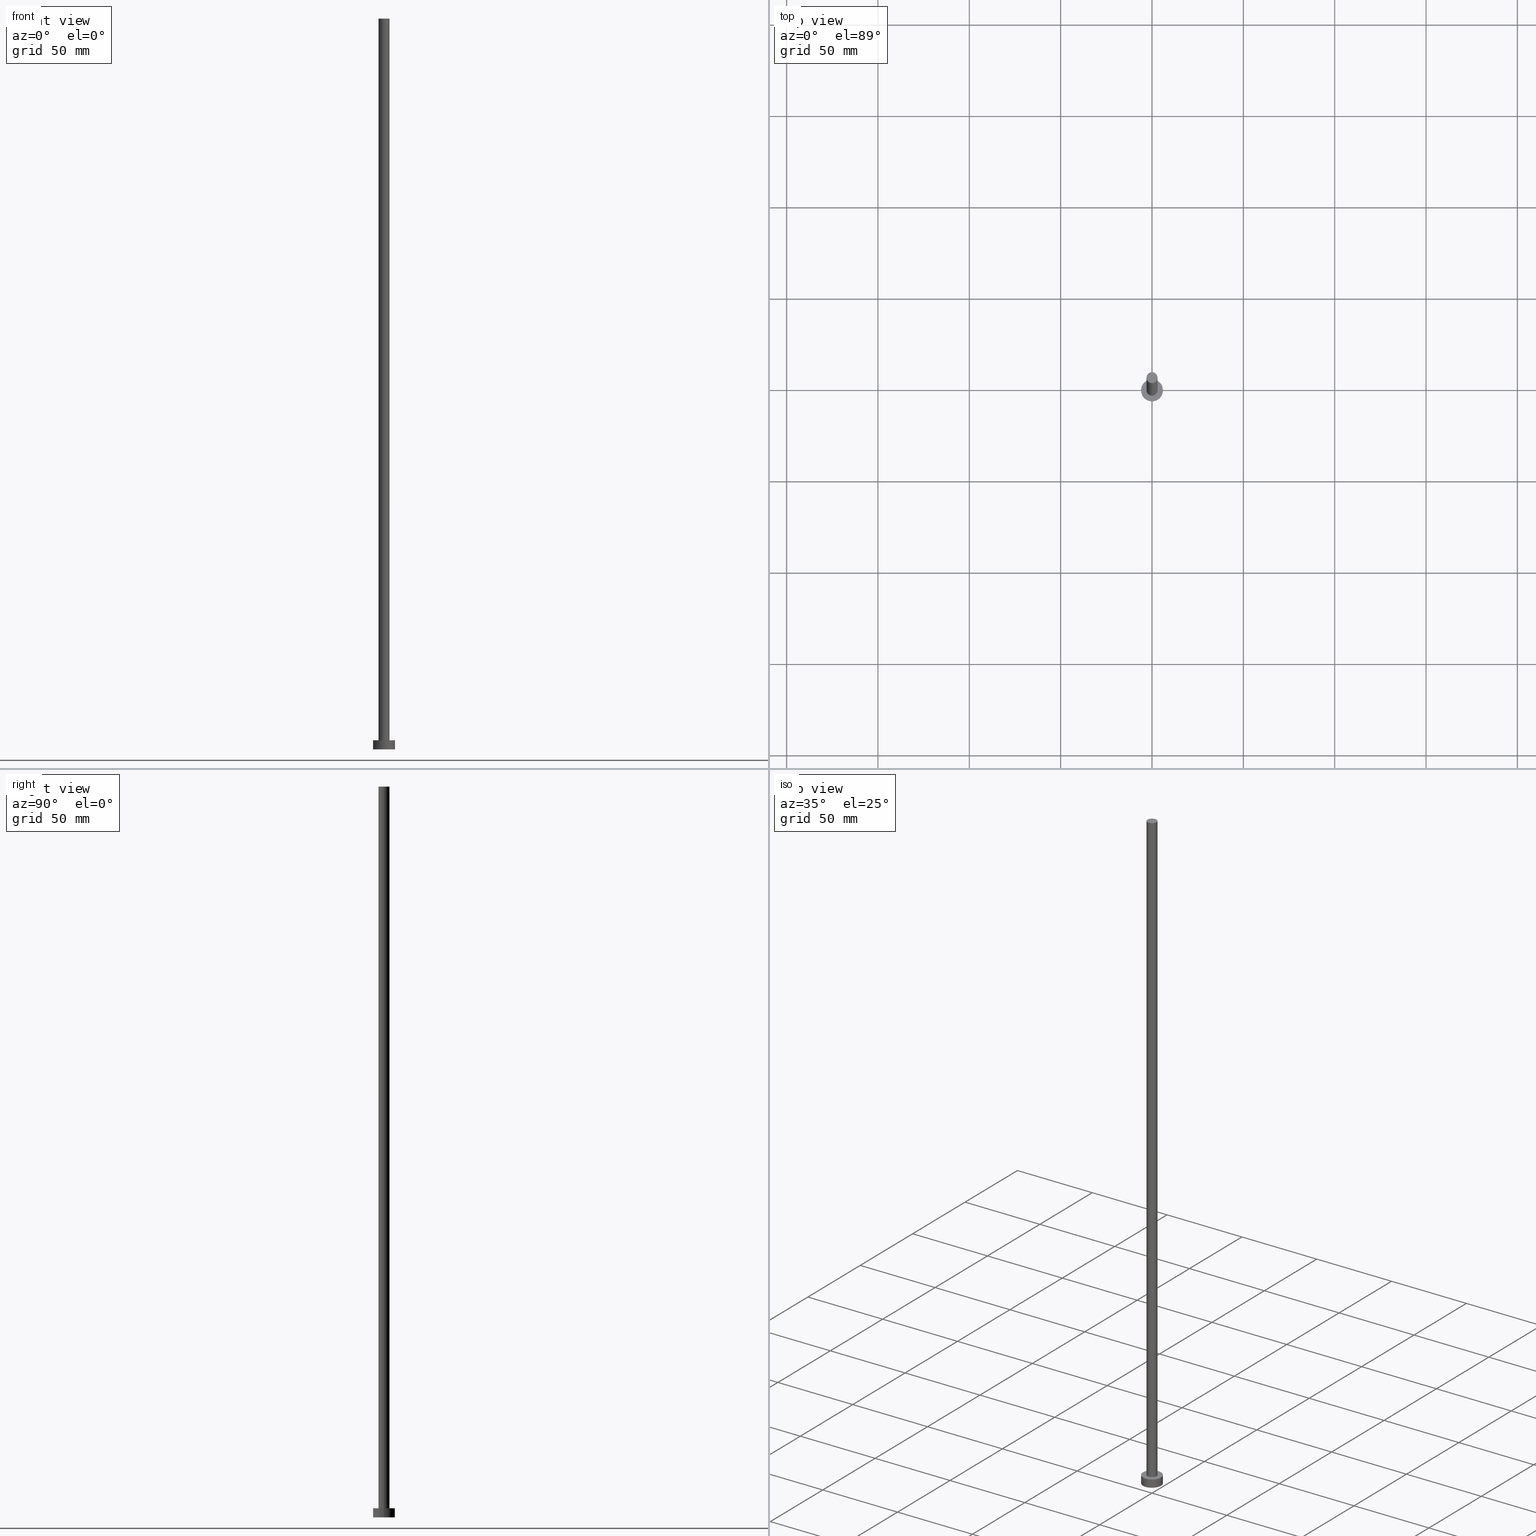
[diagram: canonical four-view strip — front | top / right | iso, engineering-drawing reading convention]
A machine part, canonical four-view strip (front | top / right | iso — engineering-drawing reading convention). The complete STEP part file that produces these views, byte-faithful:
ISO-10303-21;
HEADER;
FILE_DESCRIPTION (( 'STEP AP203' ),
    '1' );
FILE_NAME ('3a24.STEP',
    '2023-02-13T14:07:04',
    ( '' ),
    ( '' ),
    'SwSTEP 2.0',
    'SolidWorks 2019',
    '' );
FILE_SCHEMA (( 'CONFIG_CONTROL_DESIGN' ));
ENDSEC;

DATA;
#1 = VERTEX_POINT ( 'NONE', #68 ) ;
#2 = LOCAL_TIME ( 15, 7, 4.000000000000000000, #13 ) ;
#3 = LINE ( 'NONE', #142, #199 ) ;
#4 = ORIENTED_EDGE ( 'NONE', *, *, #155, .T. ) ;
#5 = APPLICATION_CONTEXT ( 'configuration controlled 3d designs of mechanical parts and assemblies' ) ;
#6 = APPROVAL_PERSON_ORGANIZATION ( #214, #143, #213 ) ;
#7 = DIRECTION ( 'NONE',  ( -1.000000000000000000, 0.000000000000000000, 0.000000000000000000 ) ) ;
#8 = CC_DESIGN_SECURITY_CLASSIFICATION ( #74, ( #82 ) ) ;
#9 = APPLICATION_PROTOCOL_DEFINITION ( 'international standard', 'config_control_design', 1994, #48 ) ;
#10 = PERSON_AND_ORGANIZATION_ROLE ( 'creator' ) ;
#11 = DESIGN_CONTEXT ( 'detailed design', #48, 'design' ) ;
#12 = DATE_TIME_ROLE ( 'creation_date' ) ;
#13 = COORDINATED_UNIVERSAL_TIME_OFFSET ( 1, 0, .AHEAD. ) ;
#14 = ADVANCED_FACE ( 'NONE', ( #224 ), #221, .T. ) ;
#15 = APPROVAL_PERSON_ORGANIZATION ( #170, #118, #132 ) ;
#16 = CARTESIAN_POINT ( 'NONE',  ( -6.000000000000000888, 0.000000000000000000, 0.000000000000000000 ) ) ;
#17 = EDGE_CURVE ( 'NONE', #237, #181, #83, .T. ) ;
#18 = AXIS2_PLACEMENT_3D ( 'NONE', #156, #152, #116 ) ;
#19 = DIRECTION ( 'NONE',  ( -0.000000000000000000, -0.000000000000000000, -1.000000000000000000 ) ) ;
#20 = VERTEX_POINT ( 'NONE', #64 ) ;
#21 = DIRECTION ( 'NONE',  ( -0.000000000000000000, -0.000000000000000000, -1.000000000000000000 ) ) ;
#22 = VECTOR ( 'NONE', #19, 1000.000000000000000 ) ;
#23 = ADVANCED_FACE ( 'NONE', ( #100 ), #178, .T. ) ;
#24 = CARTESIAN_POINT ( 'NONE',  ( 0.000000000000000000, 0.000000000000000000, 400.0000000000000000 ) ) ;
#25 = CARTESIAN_POINT ( 'NONE',  ( 0.000000000000000000, 0.000000000000000000, 5.000000000000000000 ) ) ;
#26 = DIRECTION ( 'NONE',  ( 0.000000000000000000, 0.000000000000000000, 1.000000000000000000 ) ) ;
#27 = FACE_OUTER_BOUND ( 'NONE', #162, .T. ) ;
#28 = ORIENTED_EDGE ( 'NONE', *, *, #17, .T. ) ;
#29 = CARTESIAN_POINT ( 'NONE',  ( -3.000000000000000444, 0.000000000000000000, 400.0000000000000000 ) ) ;
#30 = EDGE_CURVE ( 'NONE', #66, #181, #84, .T. ) ;
#31 = ORIENTED_EDGE ( 'NONE', *, *, #198, .F. ) ;
#32 =( NAMED_UNIT ( * ) PLANE_ANGLE_UNIT ( ) SI_UNIT ( $, .RADIAN. ) );
#33 = DIRECTION ( 'NONE',  ( 0.000000000000000000, 0.000000000000000000, 1.000000000000000000 ) ) ;
#34 = DATE_AND_TIME ( #96, #2 ) ;
#35 = CALENDAR_DATE ( 2023, 13, 2 ) ;
#36 = APPROVAL_ROLE ( '' ) ;
#37 = CC_DESIGN_PERSON_AND_ORGANIZATION_ASSIGNMENT ( #228, #10, ( #82 ) ) ;
#38 = PERSON_AND_ORGANIZATION ( #117, #247 ) ;
#39 = CARTESIAN_POINT ( 'NONE',  ( 0.000000000000000000, 0.000000000000000000, 400.0000000000000000 ) ) ;
#40 = DIRECTION ( 'NONE',  ( 1.000000000000000000, 0.000000000000000000, -0.000000000000000000 ) ) ;
#41 = EDGE_CURVE ( 'NONE', #86, #103, #153, .T. ) ;
#42 = ORIENTED_EDGE ( 'NONE', *, *, #30, .F. ) ;
#43 = DIRECTION ( 'NONE',  ( 1.000000000000000000, 0.000000000000000000, -0.000000000000000000 ) ) ;
#44 = CARTESIAN_POINT ( 'NONE',  ( 0.000000000000000000, 0.000000000000000000, 400.0000000000000000 ) ) ;
#45 = DIRECTION ( 'NONE',  ( 0.000000000000000000, 0.000000000000000000, 1.000000000000000000 ) ) ;
#46 = ADVANCED_FACE ( 'NONE', ( #56 ), #120, .T. ) ;
#47 = ORIENTED_EDGE ( 'NONE', *, *, #216, .F. ) ;
#48 = APPLICATION_CONTEXT ( 'configuration controlled 3d designs of mechanical parts and assemblies' ) ;
#49 = CARTESIAN_POINT ( 'NONE',  ( -3.000000000000000444, 0.000000000000000000, 5.000000000000000000 ) ) ;
#50 = CIRCLE ( 'NONE', #97, 3.000000000000000444 ) ;
#51 = APPROVAL_DATE_TIME ( #230, #118 ) ;
#52 = DATE_AND_TIME ( #35, #60 ) ;
#53 = EDGE_CURVE ( 'NONE', #237, #20, #50, .T. ) ;
#54 = CARTESIAN_POINT ( 'NONE',  ( 0.000000000000000000, 0.000000000000000000, 0.000000000000000000 ) ) ;
#55 = AXIS2_PLACEMENT_3D ( 'NONE', #39, #236, #239 ) ;
#56 = FACE_OUTER_BOUND ( 'NONE', #59, .T. ) ;
#57 = EDGE_CURVE ( 'NONE', #20, #66, #115, .T. ) ;
#58 = UNCERTAINTY_MEASURE_WITH_UNIT (LENGTH_MEASURE( 1.000000000000000082E-05 ), #69, 'distance_accuracy_value', 'NONE');
#59 = EDGE_LOOP ( 'NONE', ( #187, #164, #28, #235 ) ) ;
#60 = LOCAL_TIME ( 15, 7, 4.000000000000000000, #148 ) ;
#61 = ORIENTED_EDGE ( 'NONE', *, *, #212, .T. ) ;
#62 = DIRECTION ( 'NONE',  ( -0.000000000000000000, -0.000000000000000000, -1.000000000000000000 ) ) ;
#63 = EDGE_CURVE ( 'NONE', #1, #206, #79, .T. ) ;
#64 = CARTESIAN_POINT ( 'NONE',  ( 3.000000000000000444, 3.673940397442059868E-16, 400.0000000000000000 ) ) ;
#65 = CARTESIAN_POINT ( 'NONE',  ( 0.000000000000000000, 0.000000000000000000, 0.000000000000000000 ) ) ;
#66 = VERTEX_POINT ( 'NONE', #175 ) ;
#67 = FACE_OUTER_BOUND ( 'NONE', #141, .T. ) ;
#68 = CARTESIAN_POINT ( 'NONE',  ( -6.000000000000000888, 0.000000000000000000, 5.000000000000000000 ) ) ;
#69 =( LENGTH_UNIT ( ) NAMED_UNIT ( * ) SI_UNIT ( .MILLI., .METRE. ) );
#70 = VECTOR ( 'NONE', #21, 1000.000000000000000 ) ;
#71 = DIRECTION ( 'NONE',  ( 1.000000000000000000, 0.000000000000000000, 0.000000000000000000 ) ) ;
#72 = PERSON_AND_ORGANIZATION_ROLE ( 'classification_officer' ) ;
#73 = CIRCLE ( 'NONE', #191, 3.000000000000000444 ) ;
#74 = SECURITY_CLASSIFICATION ( '', '', #172 ) ;
#75 = AXIS2_PLACEMENT_3D ( 'NONE', #104, #140, #184 ) ;
#76 = PLANE ( 'NONE',  #186 ) ;
#77 = CC_DESIGN_APPROVAL ( #118, ( #161 ) ) ;
#78 = LOCAL_TIME ( 15, 7, 4.000000000000000000, #128 ) ;
#79 = CIRCLE ( 'NONE', #255, 6.000000000000000888 ) ;
#80 = ORIENTED_EDGE ( 'NONE', *, *, #63, .F. ) ;
#81 = DIRECTION ( 'NONE',  ( 1.000000000000000000, 0.000000000000000000, 0.000000000000000000 ) ) ;
#82 = PRODUCT_DEFINITION_FORMATION_WITH_SPECIFIED_SOURCE ( 'LIBOVOLN�', '', #250, .NOT_KNOWN. ) ;
#83 = LINE ( 'NONE', #144, #127 ) ;
#84 = CIRCLE ( 'NONE', #179, 3.000000000000000444 ) ;
#85 = ORIENTED_EDGE ( 'NONE', *, *, #198, .T. ) ;
#86 = VERTEX_POINT ( 'NONE', #95 ) ;
#87 = CARTESIAN_POINT ( 'NONE',  ( 0.000000000000000000, 0.000000000000000000, 5.000000000000000000 ) ) ;
#88 = DIRECTION ( 'NONE',  ( 1.000000000000000000, 0.000000000000000000, 0.000000000000000000 ) ) ;
#89 = APPROVAL_DATE_TIME ( #34, #143 ) ;
#90 = CIRCLE ( 'NONE', #130, 6.000000000000000888 ) ;
#91 = PLANE ( 'NONE',  #242 ) ;
#92 = DIRECTION ( 'NONE',  ( 0.000000000000000000, 0.000000000000000000, 1.000000000000000000 ) ) ;
#93 = CALENDAR_DATE ( 2023, 13, 2 ) ;
#94 = CALENDAR_DATE ( 2023, 13, 2 ) ;
#95 = CARTESIAN_POINT ( 'NONE',  ( 6.000000000000000888, 7.347880794884120722E-16, 0.000000000000000000 ) ) ;
#96 = CALENDAR_DATE ( 2023, 13, 2 ) ;
#97 = AXIS2_PLACEMENT_3D ( 'NONE', #24, #102, #182 ) ;
#98 = DIRECTION ( 'NONE',  ( 0.000000000000000000, 0.000000000000000000, 1.000000000000000000 ) ) ;
#99 = CC_DESIGN_DATE_AND_TIME_ASSIGNMENT ( #52, #249, ( #74 ) ) ;
#100 = FACE_OUTER_BOUND ( 'NONE', #106, .T. ) ;
#101 = ORIENTED_EDGE ( 'NONE', *, *, #155, .F. ) ;
#102 = DIRECTION ( 'NONE',  ( 0.000000000000000000, 0.000000000000000000, 1.000000000000000000 ) ) ;
#103 = VERTEX_POINT ( 'NONE', #16 ) ;
#104 = CARTESIAN_POINT ( 'NONE',  ( 0.000000000000000000, 0.000000000000000000, 5.000000000000000000 ) ) ;
#105 = ORIENTED_EDGE ( 'NONE', *, *, #63, .T. ) ;
#106 = EDGE_LOOP ( 'NONE', ( #136, #203, #119, #210 ) ) ;
#107 = AXIS2_PLACEMENT_3D ( 'NONE', #54, #92, #192 ) ;
#108 = ADVANCED_FACE ( 'NONE', ( #252, #248 ), #76, .T. ) ;
#109 = ADVANCED_FACE ( 'NONE', ( #27 ), #91, .T. ) ;
#110 = COORDINATED_UNIVERSAL_TIME_OFFSET ( 1, 0, .AHEAD. ) ;
#111 = APPROVAL_STATUS ( 'not_yet_approved' ) ;
#112 = CARTESIAN_POINT ( 'NONE',  ( 3.000000000000000444, 3.673940397442059868E-16, 400.0000000000000000 ) ) ;
#113 = PERSON_AND_ORGANIZATION_ROLE ( 'creator' ) ;
#114 = AXIS2_PLACEMENT_3D ( 'NONE', #121, #26, #81 ) ;
#115 = LINE ( 'NONE', #112, #22 ) ;
#116 = DIRECTION ( 'NONE',  ( 1.000000000000000000, 0.000000000000000000, 0.000000000000000000 ) ) ;
#117 = PERSON ( 'NEUR�EN�', 'NEUR�EN�', 'NEUR�EN�', ('NEUR�EN�'), ('NEUR�EN�'), ('NEUR�EN�') ) ;
#118 = APPROVAL ( #189, 'NEUR�EN�' ) ;
#119 = ORIENTED_EDGE ( 'NONE', *, *, #30, .T. ) ;
#120 = CYLINDRICAL_SURFACE ( 'NONE', #55, 3.000000000000000444 ) ;
#121 = CARTESIAN_POINT ( 'NONE',  ( 0.000000000000000000, 0.000000000000000000, 5.000000000000000000 ) ) ;
#122 = EDGE_CURVE ( 'NONE', #20, #237, #73, .T. ) ;
#123 = DIRECTION ( 'NONE',  ( -0.000000000000000000, -0.000000000000000000, -1.000000000000000000 ) ) ;
#124 = APPROVAL_PERSON_ORGANIZATION ( #131, #169, #36 ) ;
#125 = EDGE_LOOP ( 'NONE', ( #105, #61 ) ) ;
#126 = CARTESIAN_POINT ( 'NONE',  ( -6.000000000000000888, 0.000000000000000000, 5.000000000000000000 ) ) ;
#127 = VECTOR ( 'NONE', #240, 1000.000000000000000 ) ;
#128 = COORDINATED_UNIVERSAL_TIME_OFFSET ( 1, 0, .AHEAD. ) ;
#129 = COORDINATED_UNIVERSAL_TIME_OFFSET ( 1, 0, .AHEAD. ) ;
#130 = AXIS2_PLACEMENT_3D ( 'NONE', #166, #158, #204 ) ;
#131 = PERSON_AND_ORGANIZATION ( #117, #247 ) ;
#132 = APPROVAL_ROLE ( '' ) ;
#133 = ORIENTED_EDGE ( 'NONE', *, *, #212, .F. ) ;
#134 = CARTESIAN_POINT ( 'NONE',  ( 0.000000000000000000, 0.000000000000000000, 400.0000000000000000 ) ) ;
#135 = CC_DESIGN_PERSON_AND_ORGANIZATION_ASSIGNMENT ( #149, #171, ( #82 ) ) ;
#136 = ORIENTED_EDGE ( 'NONE', *, *, #122, .F. ) ;
#137 = CARTESIAN_POINT ( 'NONE',  ( 6.000000000000000888, 7.347880794884120722E-16, 5.000000000000000000 ) ) ;
#138 = CARTESIAN_POINT ( 'NONE',  ( 0.000000000000000000, 0.000000000000000000, 5.000000000000000000 ) ) ;
#139 = AXIS2_PLACEMENT_3D ( 'NONE', #65, #45, #207 ) ;
#140 = DIRECTION ( 'NONE',  ( -0.000000000000000000, -0.000000000000000000, -1.000000000000000000 ) ) ;
#141 = EDGE_LOOP ( 'NONE', ( #133, #244, #223, #101 ) ) ;
#142 = CARTESIAN_POINT ( 'NONE',  ( 6.000000000000000888, 7.347880794884120722E-16, 5.000000000000000000 ) ) ;
#143 = APPROVAL ( #111, 'NEUR�EN�' ) ;
#144 = CARTESIAN_POINT ( 'NONE',  ( -3.000000000000000444, 0.000000000000000000, 400.0000000000000000 ) ) ;
#145 = PLANE ( 'NONE',  #139 ) ;
#146 = CARTESIAN_POINT ( 'NONE',  ( 0.000000000000000000, 0.000000000000000000, 5.000000000000000000 ) ) ;
#147 = APPROVAL_DATE_TIME ( #194, #169 ) ;
#148 = COORDINATED_UNIVERSAL_TIME_OFFSET ( 1, 0, .AHEAD. ) ;
#149 = PERSON_AND_ORGANIZATION ( #117, #247 ) ;
#150 = APPLICATION_PROTOCOL_DEFINITION ( 'international standard', 'config_control_design', 1994, #5 ) ;
#151 = CLOSED_SHELL ( 'NONE', ( #23, #205, #14, #108, #229, #46, #109 ) ) ;
#152 = DIRECTION ( 'NONE',  ( 0.000000000000000000, 0.000000000000000000, 1.000000000000000000 ) ) ;
#153 = CIRCLE ( 'NONE', #18, 6.000000000000000888 ) ;
#154 = ORIENTED_EDGE ( 'NONE', *, *, #53, .T. ) ;
#155 = EDGE_CURVE ( 'NONE', #1, #103, #163, .T. ) ;
#156 = CARTESIAN_POINT ( 'NONE',  ( 0.000000000000000000, 0.000000000000000000, 0.000000000000000000 ) ) ;
#157 = ORIENTED_EDGE ( 'NONE', *, *, #122, .T. ) ;
#158 = DIRECTION ( 'NONE',  ( 0.000000000000000000, 0.000000000000000000, 1.000000000000000000 ) ) ;
#159 = EDGE_LOOP ( 'NONE', ( #47, #80, #4, #85 ) ) ;
#160 = DIRECTION ( 'NONE',  ( 1.000000000000000000, 0.000000000000000000, 0.000000000000000000 ) ) ;
#161 = PRODUCT_DEFINITION ( 'NEZN�M�', '', #82, #11 ) ;
#162 = EDGE_LOOP ( 'NONE', ( #154, #157 ) ) ;
#163 = LINE ( 'NONE', #126, #70 ) ;
#164 = ORIENTED_EDGE ( 'NONE', *, *, #53, .F. ) ;
#165 = CYLINDRICAL_SURFACE ( 'NONE', #75, 6.000000000000000888 ) ;
#166 = CARTESIAN_POINT ( 'NONE',  ( 0.000000000000000000, 0.000000000000000000, 0.000000000000000000 ) ) ;
#167 = CIRCLE ( 'NONE', #114, 3.000000000000000444 ) ;
#168 = PERSON_AND_ORGANIZATION ( #117, #247 ) ;
#169 = APPROVAL ( #215, 'NEUR�EN�' ) ;
#170 = PERSON_AND_ORGANIZATION ( #117, #247 ) ;
#171 = PERSON_AND_ORGANIZATION_ROLE ( 'design_supplier' ) ;
#172 = SECURITY_CLASSIFICATION_LEVEL ( 'unclassified' ) ;
#173 = PRODUCT_DEFINITION_SHAPE ( 'NONE', 'NONE',  #161 ) ;
#174 = CC_DESIGN_PERSON_AND_ORGANIZATION_ASSIGNMENT ( #168, #72, ( #74 ) ) ;
#175 = CARTESIAN_POINT ( 'NONE',  ( 3.000000000000000444, 3.673940397442059868E-16, 5.000000000000000000 ) ) ;
#176 = DIRECTION ( 'NONE',  ( 0.000000000000000000, 0.000000000000000000, 1.000000000000000000 ) ) ;
#177 = CC_DESIGN_APPROVAL ( #169, ( #74 ) ) ;
#178 = CYLINDRICAL_SURFACE ( 'NONE', #202, 3.000000000000000444 ) ;
#179 = AXIS2_PLACEMENT_3D ( 'NONE', #146, #33, #71 ) ;
#180 = LOCAL_TIME ( 15, 7, 4.000000000000000000, #129 ) ;
#181 = VERTEX_POINT ( 'NONE', #49 ) ;
#182 = DIRECTION ( 'NONE',  ( 1.000000000000000000, 0.000000000000000000, 0.000000000000000000 ) ) ;
#183 = DIRECTION ( 'NONE',  ( -0.000000000000000000, -0.000000000000000000, -1.000000000000000000 ) ) ;
#184 = DIRECTION ( 'NONE',  ( -1.000000000000000000, 0.000000000000000000, 0.000000000000000000 ) ) ;
#185 = EDGE_LOOP ( 'NONE', ( #209, #42 ) ) ;
#186 = AXIS2_PLACEMENT_3D ( 'NONE', #138, #208, #43 ) ;
#187 = ORIENTED_EDGE ( 'NONE', *, *, #57, .F. ) ;
#188 = CC_DESIGN_APPROVAL ( #143, ( #82 ) ) ;
#189 = APPROVAL_STATUS ( 'not_yet_approved' ) ;
#190 = EDGE_CURVE ( 'NONE', #181, #66, #167, .T. ) ;
#191 = AXIS2_PLACEMENT_3D ( 'NONE', #232, #176, #88 ) ;
#192 = DIRECTION ( 'NONE',  ( 1.000000000000000000, 0.000000000000000000, 0.000000000000000000 ) ) ;
#193 = LOCAL_TIME ( 15, 7, 4.000000000000000000, #110 ) ;
#194 = DATE_AND_TIME ( #94, #193 ) ;
#195 = DIRECTION ( 'NONE',  ( 1.000000000000000000, 0.000000000000000000, 0.000000000000000000 ) ) ;
#196 = DATE_AND_TIME ( #93, #78 ) ;
#197 = CARTESIAN_POINT ( 'NONE',  ( 0.000000000000000000, 0.000000000000000000, 5.000000000000000000 ) ) ;
#198 = EDGE_CURVE ( 'NONE', #103, #86, #90, .T. ) ;
#199 = VECTOR ( 'NONE', #62, 1000.000000000000000 ) ;
#200 = MANIFOLD_SOLID_BREP ( 'P�idat vysunut�m3', #151 ) ;
#201 = ORIENTED_EDGE ( 'NONE', *, *, #41, .F. ) ;
#202 = AXIS2_PLACEMENT_3D ( 'NONE', #44, #123, #7 ) ;
#203 = ORIENTED_EDGE ( 'NONE', *, *, #57, .T. ) ;
#204 = DIRECTION ( 'NONE',  ( 1.000000000000000000, 0.000000000000000000, 0.000000000000000000 ) ) ;
#205 = ADVANCED_FACE ( 'NONE', ( #67 ), #165, .T. ) ;
#206 = VERTEX_POINT ( 'NONE', #137 ) ;
#207 = DIRECTION ( 'NONE',  ( 1.000000000000000000, 0.000000000000000000, -0.000000000000000000 ) ) ;
#208 = DIRECTION ( 'NONE',  ( 0.000000000000000000, 0.000000000000000000, 1.000000000000000000 ) ) ;
#209 = ORIENTED_EDGE ( 'NONE', *, *, #190, .F. ) ;
#210 = ORIENTED_EDGE ( 'NONE', *, *, #17, .F. ) ;
#211 =( NAMED_UNIT ( * ) SI_UNIT ( $, .STERADIAN. ) SOLID_ANGLE_UNIT ( ) );
#212 = EDGE_CURVE ( 'NONE', #206, #1, #222, .T. ) ;
#213 = APPROVAL_ROLE ( '' ) ;
#214 = PERSON_AND_ORGANIZATION ( #117, #247 ) ;
#215 = APPROVAL_STATUS ( 'not_yet_approved' ) ;
#216 = EDGE_CURVE ( 'NONE', #206, #86, #3, .T. ) ;
#217 = PERSON_AND_ORGANIZATION_ROLE ( 'design_owner' ) ;
#218 = CC_DESIGN_PERSON_AND_ORGANIZATION_ASSIGNMENT ( #231, #217, ( #250 ) ) ;
#219 =( GEOMETRIC_REPRESENTATION_CONTEXT ( 3 ) GLOBAL_UNCERTAINTY_ASSIGNED_CONTEXT ( ( #58 ) ) GLOBAL_UNIT_ASSIGNED_CONTEXT ( ( #69, #32, #211 ) ) REPRESENTATION_CONTEXT ( 'NONE', 'WORKASPACE' ) );
#220 = ADVANCED_BREP_SHAPE_REPRESENTATION ( '3a24', ( #200, #107 ), #219 ) ;
#221 = CYLINDRICAL_SURFACE ( 'NONE', #234, 6.000000000000000888 ) ;
#222 = CIRCLE ( 'NONE', #253, 6.000000000000000888 ) ;
#223 = ORIENTED_EDGE ( 'NONE', *, *, #41, .T. ) ;
#224 = FACE_OUTER_BOUND ( 'NONE', #159, .T. ) ;
#225 = CC_DESIGN_DATE_AND_TIME_ASSIGNMENT ( #196, #12, ( #161 ) ) ;
#226 = SHAPE_DEFINITION_REPRESENTATION ( #173, #220 ) ;
#227 = MECHANICAL_CONTEXT ( 'NONE', #5, 'mechanical' ) ;
#228 = PERSON_AND_ORGANIZATION ( #117, #247 ) ;
#229 = ADVANCED_FACE ( 'NONE', ( #241 ), #145, .F. ) ;
#230 = DATE_AND_TIME ( #246, #180 ) ;
#231 = PERSON_AND_ORGANIZATION ( #117, #247 ) ;
#232 = CARTESIAN_POINT ( 'NONE',  ( 0.000000000000000000, 0.000000000000000000, 400.0000000000000000 ) ) ;
#233 = CC_DESIGN_PERSON_AND_ORGANIZATION_ASSIGNMENT ( #38, #113, ( #161 ) ) ;
#234 = AXIS2_PLACEMENT_3D ( 'NONE', #25, #183, #243 ) ;
#235 = ORIENTED_EDGE ( 'NONE', *, *, #190, .T. ) ;
#236 = DIRECTION ( 'NONE',  ( -0.000000000000000000, -0.000000000000000000, -1.000000000000000000 ) ) ;
#237 = VERTEX_POINT ( 'NONE', #29 ) ;
#238 = DIRECTION ( 'NONE',  ( 0.000000000000000000, 0.000000000000000000, 1.000000000000000000 ) ) ;
#239 = DIRECTION ( 'NONE',  ( -1.000000000000000000, 0.000000000000000000, 0.000000000000000000 ) ) ;
#240 = DIRECTION ( 'NONE',  ( -0.000000000000000000, -0.000000000000000000, -1.000000000000000000 ) ) ;
#241 = FACE_OUTER_BOUND ( 'NONE', #254, .T. ) ;
#242 = AXIS2_PLACEMENT_3D ( 'NONE', #134, #251, #40 ) ;
#243 = DIRECTION ( 'NONE',  ( -1.000000000000000000, 0.000000000000000000, 0.000000000000000000 ) ) ;
#244 = ORIENTED_EDGE ( 'NONE', *, *, #216, .T. ) ;
#245 = PRODUCT_RELATED_PRODUCT_CATEGORY ( 'detail', '', ( #250 ) ) ;
#246 = CALENDAR_DATE ( 2023, 13, 2 ) ;
#247 = ORGANIZATION ( 'NEUR�EN�', 'NEUR�EN�', '' ) ;
#248 = FACE_OUTER_BOUND ( 'NONE', #125, .T. ) ;
#249 = DATE_TIME_ROLE ( 'classification_date' ) ;
#250 = PRODUCT ( '3a24', '3a24', '', ( #227 ) ) ;
#251 = DIRECTION ( 'NONE',  ( 0.000000000000000000, 0.000000000000000000, 1.000000000000000000 ) ) ;
#252 = FACE_BOUND ( 'NONE', #185, .T. ) ;
#253 = AXIS2_PLACEMENT_3D ( 'NONE', #87, #238, #160 ) ;
#254 = EDGE_LOOP ( 'NONE', ( #31, #201 ) ) ;
#255 = AXIS2_PLACEMENT_3D ( 'NONE', #197, #98, #195 ) ;
ENDSEC;
END-ISO-10303-21;
